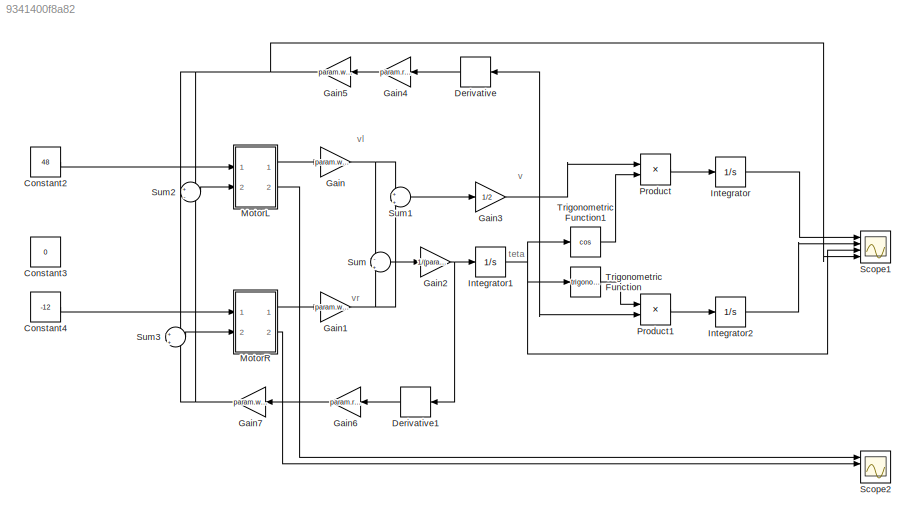
MODEL slx_9341400f8a82
KIND model
BLOCK [Constant] Constant2
  Value = 48
BLOCK [Constant] Constant3
  Value = 0
BLOCK [Constant] Constant4
  Value = -12
BLOCK [Derivative] Derivative
BLOCK [Derivative] Derivative1
BLOCK [Gain] Gain
  Gain = param.wheel.D/2
  OutDataTypeStr = Inherit: Inherit via internal rule
  ParamDataTypeStr = Inherit: Inherit via internal rule
  SaturateOnIntegerOverflow = off
BLOCK [Gain] Gain1
  Gain = param.wheel.D/2
  OutDataTypeStr = Inherit: Inherit via internal rule
  ParamDataTypeStr = Inherit: Inherit via internal rule
  SaturateOnIntegerOverflow = off
BLOCK [Gain] Gain2
  Gain = 1/(param.wheel.l/2)
  OutDataTypeStr = Inherit: Inherit via internal rule
  ParamDataTypeStr = Inherit: Inherit via internal rule
  SaturateOnIntegerOverflow = off
BLOCK [Gain] Gain3
  Gain = 1/2
  OutDataTypeStr = Inherit: Inherit via internal rule
  ParamDataTypeStr = Inherit: Inherit via internal rule
  SaturateOnIntegerOverflow = off
BLOCK [Gain] Gain4
  Gain = param.robot.M/2
  OutDataTypeStr = Inherit: Inherit via internal rule
  ParamDataTypeStr = Inherit: Inherit via internal rule
  SaturateOnIntegerOverflow = off
BLOCK [Gain] Gain5
  Gain = param.wheel.D/2
  OutDataTypeStr = Inherit: Inherit via internal rule
  ParamDataTypeStr = Inherit: Inherit via internal rule
  SaturateOnIntegerOverflow = off
BLOCK [Gain] Gain6
  Gain = param.robot.J/2/(param.wheel.l/2)
  OutDataTypeStr = Inherit: Inherit via internal rule
  ParamDataTypeStr = Inherit: Inherit via internal rule
  SaturateOnIntegerOverflow = off
BLOCK [Gain] Gain7
  Gain = param.wheel.D/2
  OutDataTypeStr = Inherit: Inherit via internal rule
  ParamDataTypeStr = Inherit: Inherit via internal rule
  SaturateOnIntegerOverflow = off
BLOCK [Integrator] Integrator
  Ports = [1, 1]
BLOCK [Integrator] Integrator1
  Ports = [1, 1]
BLOCK [Integrator] Integrator2
  Ports = [1, 1]
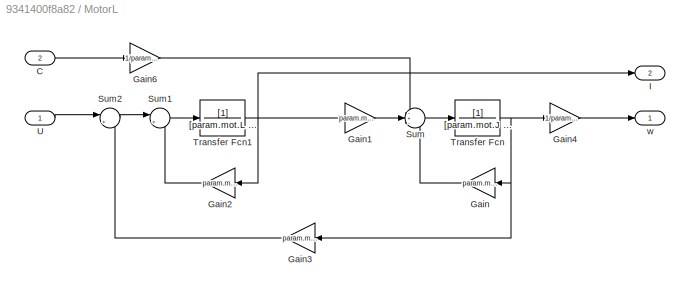
BLOCK [SubSystem] MotorL
  Ports = [2, 2]
  RequestExecContextInheritance = off
BLOCK [Inport] MotorL/C
  IconDisplay = Port number
  Port = 2
BLOCK [Gain] MotorL/Gain
  Gain = param.mot.Cf
  OutDataTypeStr = Inherit: Inherit via internal rule
  ParamDataTypeStr = Inherit: Inherit via internal rule
  SaturateOnIntegerOverflow = off
BLOCK [Gain] MotorL/Gain1
  Gain = param.mot.Kc
  OutDataTypeStr = Inherit: Inherit via internal rule
  ParamDataTypeStr = Inherit: Inherit via internal rule
  SaturateOnIntegerOverflow = off
BLOCK [Gain] MotorL/Gain2
  Gain = param.mot.R
  OutDataTypeStr = Inherit: Inherit via internal rule
  ParamDataTypeStr = Inherit: Inherit via internal rule
  SaturateOnIntegerOverflow = off
BLOCK [Gain] MotorL/Gain3
  Gain = param.mot.Ke
  OutDataTypeStr = Inherit: Inherit via internal rule
  ParamDataTypeStr = Inherit: Inherit via internal rule
  SaturateOnIntegerOverflow = off
BLOCK [Gain] MotorL/Gain4
  Gain = 1/param.mot.r
  OutDataTypeStr = Inherit: Inherit via internal rule
  ParamDataTypeStr = Inherit: Inherit via internal rule
  SaturateOnIntegerOverflow = off
BLOCK [Gain] MotorL/Gain6
  Gain = 1/param.mot.r
  OutDataTypeStr = Inherit: Inherit via internal rule
  ParamDataTypeStr = Inherit: Inherit via internal rule
  SaturateOnIntegerOverflow = off
BLOCK [Outport] MotorL/I
  IconDisplay = Port number
  Port = 2
BLOCK [Sum] MotorL/Sum
  IconShape = round
  InputSameDT = off
  Inputs = -+-
  OutDataTypeStr = Inherit: Inherit via internal rule
  Ports = [3, 1]
  SaturateOnIntegerOverflow = off
BLOCK [Sum] MotorL/Sum1
  IconShape = round
  InputSameDT = off
  Inputs = |+-
  OutDataTypeStr = Inherit: Inherit via internal rule
  Ports = [2, 1]
  SaturateOnIntegerOverflow = off
BLOCK [Sum] MotorL/Sum2
  IconShape = round
  InputSameDT = off
  Inputs = |+-
  OutDataTypeStr = Inherit: Inherit via internal rule
  Ports = [2, 1]
  SaturateOnIntegerOverflow = off
BLOCK [TransferFcn] MotorL/Transfer Fcn
  Denominator = [param.mot.J 0]
BLOCK [TransferFcn] MotorL/Transfer Fcn1
  Denominator = [param.mot.L 0]
BLOCK [Inport] MotorL/U
  IconDisplay = Port number
BLOCK [Outport] MotorL/w
  IconDisplay = Port number
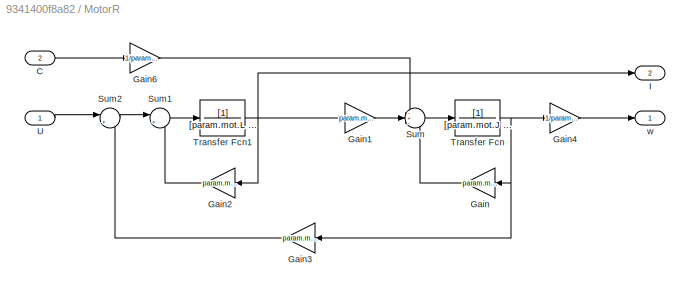
BLOCK [SubSystem] MotorR
  Ports = [2, 2]
  RequestExecContextInheritance = off
BLOCK [Inport] MotorR/C
  IconDisplay = Port number
  Port = 2
BLOCK [Gain] MotorR/Gain
  Gain = param.mot.Cf
  OutDataTypeStr = Inherit: Inherit via internal rule
  ParamDataTypeStr = Inherit: Inherit via internal rule
  SaturateOnIntegerOverflow = off
BLOCK [Gain] MotorR/Gain1
  Gain = param.mot.Kc
  OutDataTypeStr = Inherit: Inherit via internal rule
  ParamDataTypeStr = Inherit: Inherit via internal rule
  SaturateOnIntegerOverflow = off
BLOCK [Gain] MotorR/Gain2
  Gain = param.mot.R
  OutDataTypeStr = Inherit: Inherit via internal rule
  ParamDataTypeStr = Inherit: Inherit via internal rule
  SaturateOnIntegerOverflow = off
BLOCK [Gain] MotorR/Gain3
  Gain = param.mot.Ke
  OutDataTypeStr = Inherit: Inherit via internal rule
  ParamDataTypeStr = Inherit: Inherit via internal rule
  SaturateOnIntegerOverflow = off
BLOCK [Gain] MotorR/Gain4
  Gain = 1/param.mot.r
  OutDataTypeStr = Inherit: Inherit via internal rule
  ParamDataTypeStr = Inherit: Inherit via internal rule
  SaturateOnIntegerOverflow = off
BLOCK [Gain] MotorR/Gain6
  Gain = 1/param.mot.r
  OutDataTypeStr = Inherit: Inherit via internal rule
  ParamDataTypeStr = Inherit: Inherit via internal rule
  SaturateOnIntegerOverflow = off
BLOCK [Outport] MotorR/I
  IconDisplay = Port number
  Port = 2
BLOCK [Sum] MotorR/Sum
  IconShape = round
  InputSameDT = off
  Inputs = -+-
  OutDataTypeStr = Inherit: Inherit via internal rule
  Ports = [3, 1]
  SaturateOnIntegerOverflow = off
BLOCK [Sum] MotorR/Sum1
  IconShape = round
  InputSameDT = off
  Inputs = |+-
  OutDataTypeStr = Inherit: Inherit via internal rule
  Ports = [2, 1]
  SaturateOnIntegerOverflow = off
BLOCK [Sum] MotorR/Sum2
  IconShape = round
  InputSameDT = off
  Inputs = |+-
  OutDataTypeStr = Inherit: Inherit via internal rule
  Ports = [2, 1]
  SaturateOnIntegerOverflow = off
BLOCK [TransferFcn] MotorR/Transfer Fcn
  Denominator = [param.mot.J 0]
BLOCK [TransferFcn] MotorR/Transfer Fcn1
  Denominator = [param.mot.L 0]
BLOCK [Inport] MotorR/U
  IconDisplay = Port number
BLOCK [Outport] MotorR/w
  IconDisplay = Port number
BLOCK [Product] Product
  InputSameDT = off
  OutDataTypeStr = Inherit: Inherit via internal rule
  Ports = [2, 1]
  RndMeth = Floor
  SaturateOnIntegerOverflow = off
BLOCK [Product] Product1
  InputSameDT = off
  OutDataTypeStr = Inherit: Inherit via internal rule
  Ports = [2, 1]
  RndMeth = Floor
  SaturateOnIntegerOverflow = off
BLOCK [Scope] Scope1
  Floating = off
  MaxDataPoints = 5000000
  NumInputPorts = 4
  Ports = [4]
  SaveName = ScopeData1
  ShowLegends = off
  TimeRange = 2
  YMax = 0.06~0.01999999999999999~0~1
  YMin = -0.06~-0.1~-15~-0.2
BLOCK [Scope] Scope2
  Floating = off
  MaxDataPoints = 5000000
  NumInputPorts = 4
  Ports = [4]
  SaveName = ScopeData2
  ShowLegends = off
  TimeRange = 2
  YMax = 6~0~1~1
  YMin = 0~-6~-1~-1
BLOCK [Sum] Sum
  IconShape = round
  InputSameDT = off
  Inputs = -|+
  OutDataTypeStr = Inherit: Inherit via internal rule
  Ports = [2, 1]
  SaturateOnIntegerOverflow = off
BLOCK [Sum] Sum1
  IconShape = round
  InputSameDT = off
  Inputs = +|+
  OutDataTypeStr = Inherit: Inherit via internal rule
  Ports = [2, 1]
  SaturateOnIntegerOverflow = off
BLOCK [Sum] Sum2
  IconShape = round
  InputSameDT = off
  Inputs = +|-
  OutDataTypeStr = Inherit: Inherit via internal rule
  Ports = [2, 1]
  SaturateOnIntegerOverflow = off
BLOCK [Sum] Sum3
  IconShape = round
  InputSameDT = off
  Inputs = +|+
  OutDataTypeStr = Inherit: Inherit via internal rule
  Ports = [2, 1]
  SaturateOnIntegerOverflow = off
BLOCK [Trigonometry] Trigonometric Function
  Ports = [1, 1]
BLOCK [Trigonometry] Trigonometric Function1
  Operator = cos
  Ports = [1, 1]
ANNOTATION (root): teta
ANNOTATION (root): v
ANNOTATION (root): vl
ANNOTATION (root): vr
LINE Constant2:1 -> MotorL:1
LINE Constant4:1 -> MotorR:1
LINE Derivative1:1 -> Gain6:1
LINE Derivative:1 -> Gain4:1
NET Gain1:1 -> Sum1:2, Sum:2
NET Gain2:1 -> Derivative1:1, Integrator1:1
NET Gain3:1 -> Derivative:1, Product1:2, Product:1
LINE Gain4:1 -> Gain5:1
NET Gain5:1 -> Scope1:4, Sum2:1, Sum3:1
LINE Gain6:1 -> Gain7:1
NET Gain7:1 -> Sum2:2, Sum3:2
NET Gain:1 -> Sum1:1, Sum:1
NET Integrator1:1 -> Scope1:3, Trigonometric Function1:1, Trigonometric Function:1
LINE Integrator2:1 -> Scope1:2
LINE Integrator:1 -> Scope1:1
LINE MotorL/C:1 -> MotorL/Gain6:1
LINE MotorL/Gain1:1 -> MotorL/Sum:2
LINE MotorL/Gain2:1 -> MotorL/Sum1:2
LINE MotorL/Gain3:1 -> MotorL/Sum2:2
LINE MotorL/Gain4:1 -> MotorL/w:1
LINE MotorL/Gain6:1 -> MotorL/Sum:1
LINE MotorL/Gain:1 -> MotorL/Sum:3
LINE MotorL/Sum1:1 -> MotorL/Transfer Fcn1:1
LINE MotorL/Sum2:1 -> MotorL/Sum1:1
LINE MotorL/Sum:1 -> MotorL/Transfer Fcn:1
NET MotorL/Transfer Fcn1:1 -> MotorL/Gain1:1, MotorL/Gain2:1, MotorL/I:1
NET MotorL/Transfer Fcn:1 -> MotorL/Gain3:1, MotorL/Gain4:1, MotorL/Gain:1
LINE MotorL/U:1 -> MotorL/Sum2:1
LINE MotorL:1 -> Gain:1
LINE MotorL:2 -> Scope2:1
LINE MotorR/C:1 -> MotorR/Gain6:1
LINE MotorR/Gain1:1 -> MotorR/Sum:2
LINE MotorR/Gain2:1 -> MotorR/Sum1:2
LINE MotorR/Gain3:1 -> MotorR/Sum2:2
LINE MotorR/Gain4:1 -> MotorR/w:1
LINE MotorR/Gain6:1 -> MotorR/Sum:1
LINE MotorR/Gain:1 -> MotorR/Sum:3
LINE MotorR/Sum1:1 -> MotorR/Transfer Fcn1:1
LINE MotorR/Sum2:1 -> MotorR/Sum1:1
LINE MotorR/Sum:1 -> MotorR/Transfer Fcn:1
NET MotorR/Transfer Fcn1:1 -> MotorR/Gain1:1, MotorR/Gain2:1, MotorR/I:1
NET MotorR/Transfer Fcn:1 -> MotorR/Gain3:1, MotorR/Gain4:1, MotorR/Gain:1
LINE MotorR/U:1 -> MotorR/Sum2:1
LINE MotorR:1 -> Gain1:1
LINE MotorR:2 -> Scope2:2
LINE Product1:1 -> Integrator2:1
LINE Product:1 -> Integrator:1
LINE Sum1:1 -> Gain3:1
LINE Sum2:1 -> MotorL:2
LINE Sum3:1 -> MotorR:2
LINE Sum:1 -> Gain2:1
LINE Trigonometric Function1:1 -> Product:2
LINE Trigonometric Function:1 -> Product1:1
note: NET lines group one-source signal fan-out (src -> all destinations, sorted); 1:1 wires keep LINE
